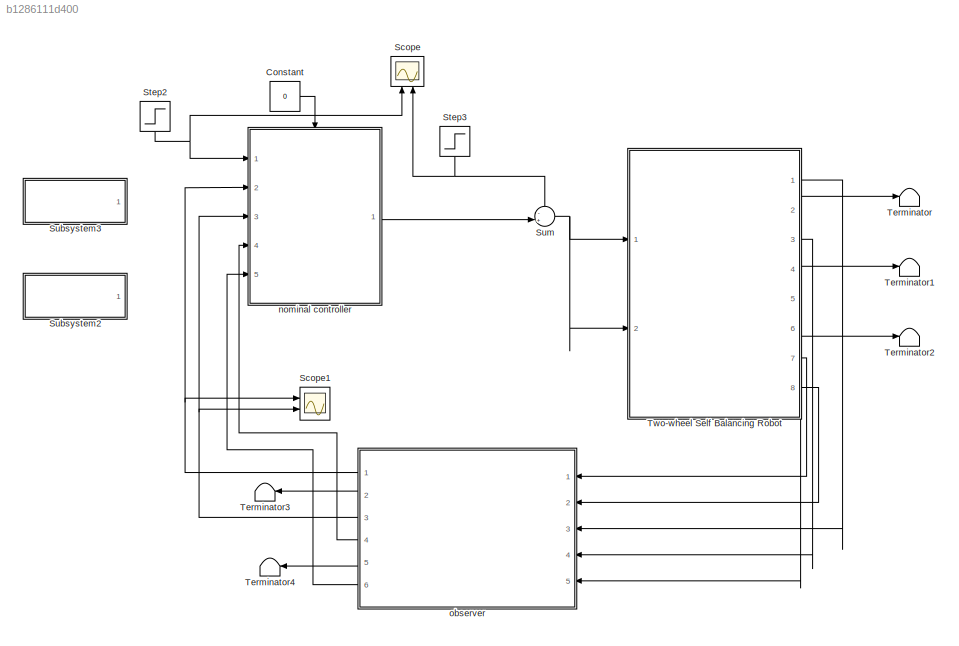
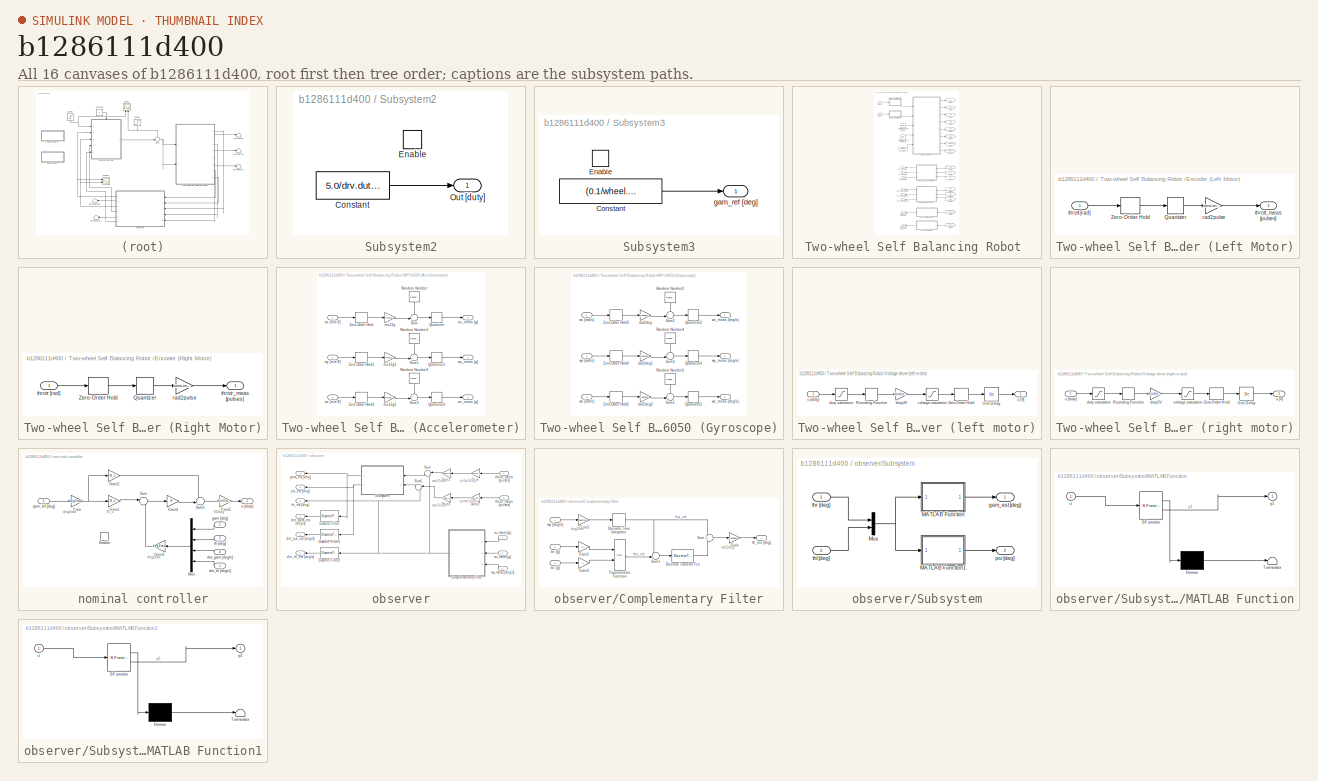
[diagram: thumbnail index - all 16 canvases of the model, root first then tree order]
MODEL slx_b1286111d400
KIND model
CONFIG AbsTol = auto
CONFIG EnableMultiTasking = off
CONFIG FixedStep = 0.01
CONFIG MaxStep = auto
CONFIG MinStep = auto
CONFIG RelTol = 1e-3
CONFIG SampleTimeConstraint = Unconstrained
CONFIG SolverName = ode15s
CONFIG StartTime = 0.0
CONFIG StopTime = 12
BLOCK [Constant] Constant
  SampleTime = Ts
  Value = 0
BLOCK [Scope] Scope
  Floating = off
  NameLocation = right
  NumInputPorts = 2
  Ports = [2]
  ScopeSpecificationString = Simulink.scopes.TimeScopeBlockCfg('CurrentConfiguration', extmgr.ConfigurationSet(extmgr.Configuration('Core','General UI',true),extmgr.Configuration('Core','Source UI',true),extmgr.Configuration('Sources','WiredSimulink',true,'DataLoggingVariableName','ScopeData1'),extmgr.Configuration('Visuals','Time Domain',true,'SerializedDisplays',{struct('MinYLimReal','-21.06462','MaxYLimReal','189.58162','Y...<+1435ch>
BLOCK [Scope] Scope1
  Floating = off
  NumInputPorts = 2
  Ports = [2]
  ScopeSpecificationString = Simulink.scopes.TimeScopeBlockCfg('CurrentConfiguration', extmgr.ConfigurationSet(extmgr.Configuration('Core','General UI',true),extmgr.Configuration('Core','Source UI',true),extmgr.Configuration('Sources','WiredSimulink',true,'DataLoggingVariableName','ScopeData1','DataLoggingSaveFormat','Array','DataLoggingLimitDataPoints',true,'DataLoggingDecimation','1'),extmgr.Configuration('Visuals','Time Do...<+1754ch>
BLOCK [Step] Step2
  After = (0.1/wheel.r)*rad2deg*1
  NameLocation = left
  SampleTime = Ts
BLOCK [Step] Step3
  After = 5.0/drv.duty2V*1
  NameLocation = left
  SampleTime = Ts
  Time = 10
BLOCK [SubSystem] Subsystem2
  Ports = [0, 1, 1]
  RequestExecContextInheritance = off
BLOCK [Constant] Subsystem2/Constant
  Value = 5.0/drv.duty2V
BLOCK [EnablePort] Subsystem2/Enable
  Ports = []
BLOCK [Outport] Subsystem2/Out [duty]
BLOCK [SubSystem] Subsystem3
  Ports = [0, 1, 1]
  RequestExecContextInheritance = off
BLOCK [Constant] Subsystem3/Constant
  Value = (0.1/wheel.r)*rad2deg
BLOCK [EnablePort] Subsystem3/Enable
  Ports = []
BLOCK [Outport] Subsystem3/gam_ref [deg]
BLOCK [Sum] Sum
  Inputs = -+|
  Ports = [2, 1]
BLOCK [Terminator] Terminator
BLOCK [Terminator] Terminator1
BLOCK [Terminator] Terminator2
BLOCK [Terminator] Terminator3
BLOCK [Terminator] Terminator4
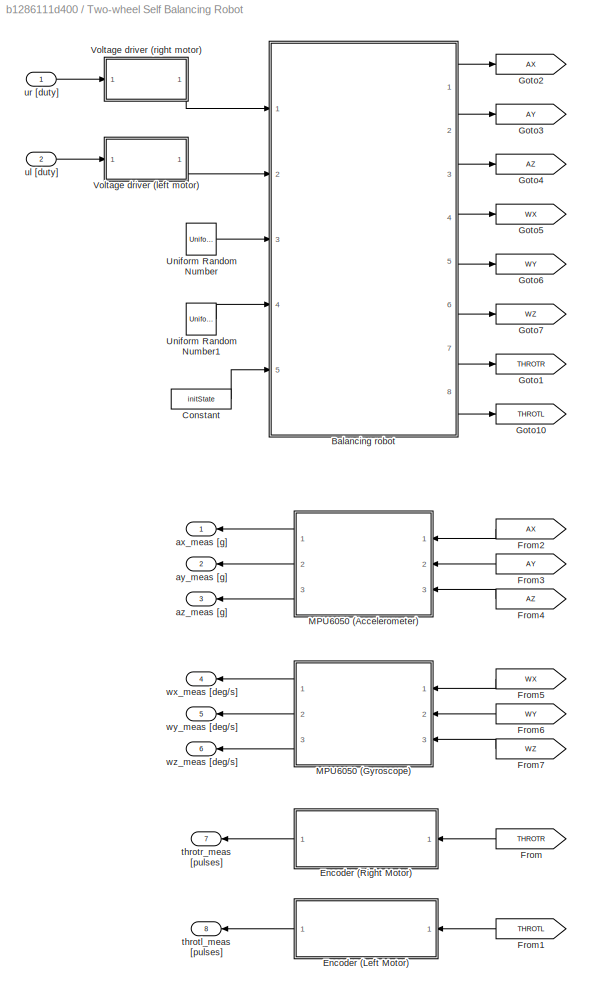
BLOCK [SubSystem] Two-wheel Self Balancing Robot 
  Ports = [2, 8]
  RequestExecContextInheritance = off
BLOCK [ModelReference] Two-wheel Self Balancing Robot /Balancing robot
  CopyOfModelProtected = on
  ModelNameDialog = balrob3d_win64.slxp
  ModelReferenceVersion = 1.741
  Ports = [5, 8]
BLOCK [Constant] Two-wheel Self Balancing Robot /Constant
  Value = initState
BLOCK [SubSystem] Two-wheel Self Balancing Robot /Encoder (Left Motor)
  Ports = [1, 1]
  RequestExecContextInheritance = off
BLOCK [Quantizer] Two-wheel Self Balancing Robot /Encoder (Left Motor)/Quantizer
  QuantizationInterval = sens.enc.pulse2rad
BLOCK [ZeroOrderHold] Two-wheel Self Balancing Robot /Encoder (Left Motor)/Zero-Order Hold
  SampleTime = Ts
BLOCK [Gain] Two-wheel Self Balancing Robot /Encoder (Left Motor)/rad2pulse
  Gain = sens.enc.rad2pulse
BLOCK [Inport] Two-wheel Self Balancing Robot /Encoder (Left Motor)/throtl [rad]
BLOCK [Outport] Two-wheel Self Balancing Robot /Encoder (Left Motor)/throtl_meas [pulses]
BLOCK [SubSystem] Two-wheel Self Balancing Robot /Encoder (Right Motor)
  Ports = [1, 1]
  RequestExecContextInheritance = off
BLOCK [Quantizer] Two-wheel Self Balancing Robot /Encoder (Right Motor)/Quantizer
  QuantizationInterval = sens.enc.pulse2rad
BLOCK [ZeroOrderHold] Two-wheel Self Balancing Robot /Encoder (Right Motor)/Zero-Order Hold
  SampleTime = Ts
BLOCK [Gain] Two-wheel Self Balancing Robot /Encoder (Right Motor)/rad2pulse
  Gain = sens.enc.rad2pulse
BLOCK [Inport] Two-wheel Self Balancing Robot /Encoder (Right Motor)/throtr [rad]
BLOCK [Outport] Two-wheel Self Balancing Robot /Encoder (Right Motor)/throtr_meas [pulses]
BLOCK [From] Two-wheel Self Balancing Robot /From
  GotoTag = THROTR
  NameLocation = top
BLOCK [From] Two-wheel Self Balancing Robot /From1
  GotoTag = THROTL
  NameLocation = top
BLOCK [From] Two-wheel Self Balancing Robot /From2
  GotoTag = AX
  NameLocation = top
BLOCK [From] Two-wheel Self Balancing Robot /From3
  GotoTag = AY
  NameLocation = top
BLOCK [From] Two-wheel Self Balancing Robot /From4
  GotoTag = AZ
  NameLocation = top
BLOCK [From] Two-wheel Self Balancing Robot /From5
  GotoTag = WX
  NameLocation = top
BLOCK [From] Two-wheel Self Balancing Robot /From6
  GotoTag = WY
  NameLocation = top
BLOCK [From] Two-wheel Self Balancing Robot /From7
  GotoTag = WZ
  NameLocation = top
BLOCK [Goto] Two-wheel Self Balancing Robot /Goto1
  GotoTag = THROTR
BLOCK [Goto] Two-wheel Self Balancing Robot /Goto10
  GotoTag = THROTL
BLOCK [Goto] Two-wheel Self Balancing Robot /Goto2
  GotoTag = AX
BLOCK [Goto] Two-wheel Self Balancing Robot /Goto3
  GotoTag = AY
BLOCK [Goto] Two-wheel Self Balancing Robot /Goto4
  GotoTag = AZ
BLOCK [Goto] Two-wheel Self Balancing Robot /Goto5
  GotoTag = WX
BLOCK [Goto] Two-wheel Self Balancing Robot /Goto6
  GotoTag = WY
BLOCK [Goto] Two-wheel Self Balancing Robot /Goto7
  GotoTag = WZ
BLOCK [SubSystem] Two-wheel Self Balancing Robot /MPU6050 (Accelerometer)
  Ports = [3, 3]
  RequestExecContextInheritance = off
BLOCK [Quantizer] Two-wheel Self Balancing Robot /MPU6050 (Accelerometer)/Quantizer
  QuantizationInterval = sens.mpu.acc.LSB2g
BLOCK [Quantizer] Two-wheel Self Balancing Robot /MPU6050 (Accelerometer)/Quantizer1
  QuantizationInterval = sens.mpu.acc.LSB2g
BLOCK [Quantizer] Two-wheel Self Balancing Robot /MPU6050 (Accelerometer)/Quantizer3
  QuantizationInterval = sens.mpu.acc.LSB2g
BLOCK [RandomNumber] Two-wheel Self Balancing Robot /MPU6050 (Accelerometer)/Random Number
  NameLocation = left
  SampleTime = Ts
  Seed = 1
  Variance = sens.mpu.acc.noisevar
BLOCK [RandomNumber] Two-wheel Self Balancing Robot /MPU6050 (Accelerometer)/Random Number1
  NameLocation = left
  SampleTime = Ts
  Seed = 10
  Variance = sens.mpu.acc.noisevar
BLOCK [RandomNumber] Two-wheel Self Balancing Robot /MPU6050 (Accelerometer)/Random Number3
  NameLocation = left
  SampleTime = Ts
  Seed = 100
  Variance = sens.mpu.acc.noisevar
BLOCK [Sum] Two-wheel Self Balancing Robot /MPU6050 (Accelerometer)/Sum
  Inputs = ++|
  Ports = [2, 1]
BLOCK [Sum] Two-wheel Self Balancing Robot /MPU6050 (Accelerometer)/Sum1
  Inputs = ++|
  Ports = [2, 1]
BLOCK [Sum] Two-wheel Self Balancing Robot /MPU6050 (Accelerometer)/Sum3
  Inputs = ++|
  Ports = [2, 1]
BLOCK [ZeroOrderHold] Two-wheel Self Balancing Robot /MPU6050 (Accelerometer)/Zero-Order Hold
  SampleTime = Ts
BLOCK [ZeroOrderHold] Two-wheel Self Balancing Robot /MPU6050 (Accelerometer)/Zero-Order Hold1
  SampleTime = Ts
BLOCK [ZeroOrderHold] Two-wheel Self Balancing Robot /MPU6050 (Accelerometer)/Zero-Order Hold3
  SampleTime = Ts
BLOCK [Inport] Two-wheel Self Balancing Robot /MPU6050 (Accelerometer)/ax [m//s^2]
BLOCK [Outport] Two-wheel Self Balancing Robot /MPU6050 (Accelerometer)/ax_meas [g]
BLOCK [Inport] Two-wheel Self Balancing Robot /MPU6050 (Accelerometer)/ay [m//s^2]
  Port = 2
BLOCK [Outport] Two-wheel Self Balancing Robot /MPU6050 (Accelerometer)/ay_meas [g]
  Port = 2
BLOCK [Inport] Two-wheel Self Balancing Robot /MPU6050 (Accelerometer)/az [m//s^2]
  Port = 3
BLOCK [Outport] Two-wheel Self Balancing Robot /MPU6050 (Accelerometer)/az_meas [g]
  Port = 3
BLOCK [Gain] Two-wheel Self Balancing Robot /MPU6050 (Accelerometer)/ms22g
  Gain = ms22g
BLOCK [Gain] Two-wheel Self Balancing Robot /MPU6050 (Accelerometer)/ms22g1
  Gain = ms22g
BLOCK [Gain] Two-wheel Self Balancing Robot /MPU6050 (Accelerometer)/ms22g2
  Gain = ms22g
BLOCK [SubSystem] Two-wheel Self Balancing Robot /MPU6050 (Gyroscope)
  Ports = [3, 3]
  RequestExecContextInheritance = off
BLOCK [Quantizer] Two-wheel Self Balancing Robot /MPU6050 (Gyroscope)/Quantizer2
  QuantizationInterval = sens.mpu.gyro.LSB2degs
BLOCK [Quantizer] Two-wheel Self Balancing Robot /MPU6050 (Gyroscope)/Quantizer4
  QuantizationInterval = sens.mpu.gyro.LSB2degs
BLOCK [Quantizer] Two-wheel Self Balancing Robot /MPU6050 (Gyroscope)/Quantizer5
  QuantizationInterval = sens.mpu.gyro.LSB2degs
BLOCK [RandomNumber] Two-wheel Self Balancing Robot /MPU6050 (Gyroscope)/Random Number2
  NameLocation = left
  SampleTime = Ts
  Seed = 2
  Variance = sens.mpu.gyro.noisevar
BLOCK [RandomNumber] Two-wheel Self Balancing Robot /MPU6050 (Gyroscope)/Random Number4
  NameLocation = left
  SampleTime = Ts
  Seed = 20
  Variance = sens.mpu.gyro.noisevar
BLOCK [RandomNumber] Two-wheel Self Balancing Robot /MPU6050 (Gyroscope)/Random Number5
  NameLocation = left
  SampleTime = Ts
  Seed = 200
  Variance = sens.mpu.gyro.noisevar
BLOCK [Sum] Two-wheel Self Balancing Robot /MPU6050 (Gyroscope)/Sum2
  Inputs = ++|
  Ports = [2, 1]
BLOCK [Sum] Two-wheel Self Balancing Robot /MPU6050 (Gyroscope)/Sum4
  Inputs = ++|
  Ports = [2, 1]
BLOCK [Sum] Two-wheel Self Balancing Robot /MPU6050 (Gyroscope)/Sum5
  Inputs = ++|
  Ports = [2, 1]
BLOCK [ZeroOrderHold] Two-wheel Self Balancing Robot /MPU6050 (Gyroscope)/Zero-Order Hold2
  SampleTime = Ts
BLOCK [ZeroOrderHold] Two-wheel Self Balancing Robot /MPU6050 (Gyroscope)/Zero-Order Hold4
  SampleTime = Ts
BLOCK [ZeroOrderHold] Two-wheel Self Balancing Robot /MPU6050 (Gyroscope)/Zero-Order Hold5
  SampleTime = Ts
BLOCK [Gain] Two-wheel Self Balancing Robot /MPU6050 (Gyroscope)/rad2deg
  Gain = rad2deg
BLOCK [Gain] Two-wheel Self Balancing Robot /MPU6050 (Gyroscope)/rad2deg1
  Gain = rad2deg
BLOCK [Gain] Two-wheel Self Balancing Robot /MPU6050 (Gyroscope)/rad2deg2
  Gain = rad2deg
BLOCK [Inport] Two-wheel Self Balancing Robot /MPU6050 (Gyroscope)/wx [rad//s]
BLOCK [Outport] Two-wheel Self Balancing Robot /MPU6050 (Gyroscope)/wx_meas [deg//s]
BLOCK [Inport] Two-wheel Self Balancing Robot /MPU6050 (Gyroscope)/wy [rad//s]
  Port = 2
BLOCK [Outport] Two-wheel Self Balancing Robot /MPU6050 (Gyroscope)/wy_meas [deg//s]
  Port = 2
BLOCK [Inport] Two-wheel Self Balancing Robot /MPU6050 (Gyroscope)/wz [rad//s]
  Port = 3
BLOCK [Outport] Two-wheel Self Balancing Robot /MPU6050 (Gyroscope)/wz_meas [deg//s]
  Port = 3
BLOCK [UniformRandomNumber] Two-wheel Self Balancing Robot /Uniform Random Number
  Maximum = 1.3
  Minimum = 0.7
  SampleTime = 1
BLOCK [UniformRandomNumber] Two-wheel Self Balancing Robot /Uniform Random Number1
  Maximum = 1.3
  Minimum = 0.7
  SampleTime = 1
  Seed = 10
BLOCK [SubSystem] Two-wheel Self Balancing Robot /Voltage driver (left motor)
  Ports = [1, 1]
  RequestExecContextInheritance = off
BLOCK [Rounding] Two-wheel Self Balancing Robot /Voltage driver (left motor)/Rounding Function
  Operator = fix
BLOCK [UnitDelay] Two-wheel Self Balancing Robot /Voltage driver (left motor)/Unit Delay
  HasFrameUpgradeWarning = on
  SampleTime = 1/drv.pwm.Fs
BLOCK [ZeroOrderHold] Two-wheel Self Balancing Robot /Voltage driver (left motor)/Zero-Order Hold
  SampleTime = Ts
BLOCK [Saturate] Two-wheel Self Balancing Robot /Voltage driver (left motor)/duty saturation
  LowerLimit = -255
  UpperLimit = 255
BLOCK [Gain] Two-wheel Self Balancing Robot /Voltage driver (left motor)/duty2V
  Gain = drv.duty2V
BLOCK [Outport] Two-wheel Self Balancing Robot /Voltage driver (left motor)/u [V]
BLOCK [Inport] Two-wheel Self Balancing Robot /Voltage driver (left motor)/u [duty]
BLOCK [Saturate] Two-wheel Self Balancing Robot /Voltage driver (left motor)/voltage saturation
  LowerLimit = -drv.Vbus
  UpperLimit = drv.Vbus
BLOCK [SubSystem] Two-wheel Self Balancing Robot /Voltage driver (right motor)
  Ports = [1, 1]
  RequestExecContextInheritance = off
BLOCK [Rounding] Two-wheel Self Balancing Robot /Voltage driver (right motor)/Rounding Function
  Operator = fix
BLOCK [UnitDelay] Two-wheel Self Balancing Robot /Voltage driver (right motor)/Unit Delay
  HasFrameUpgradeWarning = on
  SampleTime = 1/drv.pwm.Fs
BLOCK [ZeroOrderHold] Two-wheel Self Balancing Robot /Voltage driver (right motor)/Zero-Order Hold
  SampleTime = Ts
BLOCK [Saturate] Two-wheel Self Balancing Robot /Voltage driver (right motor)/duty saturation
  LowerLimit = -255
  UpperLimit = 255
BLOCK [Gain] Two-wheel Self Balancing Robot /Voltage driver (right motor)/duty2V
  Gain = drv.duty2V
BLOCK [Outport] Two-wheel Self Balancing Robot /Voltage driver (right motor)/u [V]
BLOCK [Inport] Two-wheel Self Balancing Robot /Voltage driver (right motor)/u [duty]
BLOCK [Saturate] Two-wheel Self Balancing Robot /Voltage driver (right motor)/voltage saturation
  LowerLimit = -drv.Vbus
  UpperLimit = drv.Vbus
BLOCK [Outport] Two-wheel Self Balancing Robot /ax_meas [g]
BLOCK [Outport] Two-wheel Self Balancing Robot /ay_meas [g]
  Port = 2
BLOCK [Outport] Two-wheel Self Balancing Robot /az_meas [g]
  Port = 3
BLOCK [Outport] Two-wheel Self Balancing Robot /throtl_meas [pulses]
  Port = 8
BLOCK [Outport] Two-wheel Self Balancing Robot /throtr_meas [pulses]
  Port = 7
BLOCK [Inport] Two-wheel Self Balancing Robot /ul [duty]
  Port = 2
BLOCK [Inport] Two-wheel Self Balancing Robot /ur [duty]
BLOCK [Outport] Two-wheel Self Balancing Robot /wx_meas [deg//s]
  Port = 4
BLOCK [Outport] Two-wheel Self Balancing Robot /wy_meas [deg//s]
  Port = 5
BLOCK [Outport] Two-wheel Self Balancing Robot /wz_meas [deg//s]
  Port = 6
BLOCK [SubSystem] nominal controller
  Ports = [5, 1, 1]
  RequestExecContextInheritance = off
BLOCK [EnablePort] nominal controller/Enable
  Ports = []
BLOCK [Gain] nominal controller/Gain
  Gain = deg2rad
BLOCK [Gain] nominal controller/Gain1
  Gain = N_x
BLOCK [Gain] nominal controller/Gain2
  Gain = N_u
BLOCK [Gain] nominal controller/Gain3
  Gain = deg2rad
  NameLocation = top
BLOCK [Gain] nominal controller/Gain4
  Gain = K
  Multiplication = Matrix(K*u)
BLOCK [Gain] nominal controller/Gain5
  Gain = drv.V2duty
BLOCK [Mux] nominal controller/Mux
  DisplayOption = bar
  Ports = [4, 1]
BLOCK [Sum] nominal controller/Sum
  Inputs = |+-
  Ports = [2, 1]
BLOCK [Sum] nominal controller/Sum1
  Inputs = ++|
  Ports = [2, 1]
BLOCK [Inport] nominal controller/dot_gam [deg//s]
  Port = 4
BLOCK [Inport] nominal controller/dot_th [deg//s]
  Port = 5
BLOCK [Inport] nominal controller/gam [deg]
  Port = 2
BLOCK [Inport] nominal controller/gam_ref [deg]
BLOCK [Inport] nominal controller/th [deg]
  Port = 3
BLOCK [Outport] nominal controller/u [duty]
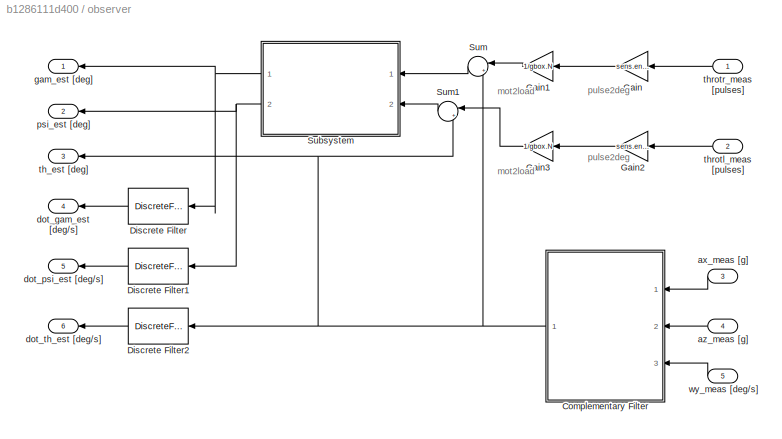
BLOCK [SubSystem] observer
  Ports = [5, 6]
  RequestExecContextInheritance = off
BLOCK [SubSystem] observer/Complementary Filter
  Ports = [3, 1]
  RequestExecContextInheritance = off
BLOCK [DiscreteTransferFcn] observer/Complementary Filter/Discrete Transfer Fcn
  Denominator = [0.4547 -0.4447]
  InputPortMap = u0
  Numerator = [0.01]
  Ports = [1, 1]
  SampleTime = Ts
BLOCK [DiscreteIntegrator] observer/Complementary Filter/Discrete-Time Integrator
  ICPrevOutput = DiscIntNeverNeededParam
  ICPrevScaledInput = DiscIntNeverNeededParam
  InitialConditionSetting = Auto
  Ports = [1, 1]
  SampleTime = Ts
BLOCK [Gain] observer/Complementary Filter/Gain
  Gain = rad2deg
BLOCK [Gain] observer/Complementary Filter/Gain1
BLOCK [Gain] observer/Complementary Filter/Gain2
  Gain = -1
BLOCK [Gain] observer/Complementary Filter/Gain3
  Gain = deg2rad
BLOCK [Sum] observer/Complementary Filter/Sum
  Inputs = +|+
  Ports = [2, 1]
BLOCK [Sum] observer/Complementary Filter/Sum1
  Inputs = -+|
  Ports = [2, 1]
BLOCK [Trigonometry] observer/Complementary Filter/Trigonometric Function
  Operator = atan2
  Ports = [2, 1]
BLOCK [Inport] observer/Complementary Filter/ax [g]
  Port = 2
BLOCK [Inport] observer/Complementary Filter/az [g]
  Port = 3
BLOCK [Outport] observer/Complementary Filter/th_est [deg]
BLOCK [Inport] observer/Complementary Filter/wy [deg//s]
BLOCK [DiscreteFilter] observer/Discrete Filter
  Denominator = [3*Ts]
  InputPortMap = u0
  Numerator = [1 0 0 -1]
  Ports = [1, 1]
  SampleTime = Ts
BLOCK [DiscreteFilter] observer/Discrete Filter1
  Denominator = [3*Ts]
  InputPortMap = u0
  Numerator = [1 0 0 -1]
  Ports = [1, 1]
  SampleTime = Ts
BLOCK [DiscreteFilter] observer/Discrete Filter2
  Denominator = [3*Ts]
  InputPortMap = u0
  Numerator = [1 0 0 -1]
  Ports = [1, 1]
  SampleTime = Ts
BLOCK [Gain] observer/Gain
  Gain = sens.enc.pulse2deg
BLOCK [Gain] observer/Gain1
  Gain = 1/gbox.N
BLOCK [Gain] observer/Gain2
  Gain = sens.enc.pulse2deg
BLOCK [Gain] observer/Gain3
  Gain = 1/gbox.N
BLOCK [SubSystem] observer/Subsystem
  Ports = [2, 2]
  RequestExecContextInheritance = off
BLOCK [SubSystem] observer/Subsystem/MATLAB Function
  ErrorFcn = Stateflow.Translate.translate
  PermitHierarchicalResolution = ExplicitOnly
  Ports = [1, 1]
  RequestExecContextInheritance = off
  SFBlockType = MATLAB Function
  TreatAsAtomicUnit = on
BLOCK [Demux] observer/Subsystem/MATLAB Function/ Demux 
  Outputs = 1
  Ports = [1, 1]
BLOCK [S-Function] observer/Subsystem/MATLAB Function/ SFunction 
  EnableBusSupport = on
  FunctionName = sf_sfun
  PortCounts = [1 2]
  Ports = [1, 2]
  SFcnIsStateOwnerBlock = off
  SFunctionDeploymentMode = off
  Tag = Stateflow S-Function 2
BLOCK [Terminator] observer/Subsystem/MATLAB Function/ Terminator 
BLOCK [Inport] observer/Subsystem/MATLAB Function/u
BLOCK [Outport] observer/Subsystem/MATLAB Function/y1
BLOCK [SubSystem] observer/Subsystem/MATLAB Function1
  ErrorFcn = Stateflow.Translate.translate
  PermitHierarchicalResolution = ExplicitOnly
  Ports = [1, 1]
  RequestExecContextInheritance = off
  SFBlockType = MATLAB Function
  TreatAsAtomicUnit = on
BLOCK [Demux] observer/Subsystem/MATLAB Function1/ Demux 
  Outputs = 1
  Ports = [1, 1]
BLOCK [S-Function] observer/Subsystem/MATLAB Function1/ SFunction 
  EnableBusSupport = on
  FunctionName = sf_sfun
  PortCounts = [1 2]
  Ports = [1, 2]
  SFcnIsStateOwnerBlock = off
  SFunctionDeploymentMode = off
  Tag = Stateflow S-Function 1
BLOCK [Terminator] observer/Subsystem/MATLAB Function1/ Terminator 
BLOCK [Inport] observer/Subsystem/MATLAB Function1/u
BLOCK [Outport] observer/Subsystem/MATLAB Function1/y2
BLOCK [Mux] observer/Subsystem/Mux
  DisplayOption = bar
  Inputs = 2
  Ports = [2, 1]
BLOCK [Outport] observer/Subsystem/gam_est [deg]
BLOCK [Outport] observer/Subsystem/psi [deg]
  Port = 2
BLOCK [Inport] observer/Subsystem/thl [deg]
  Port = 2
BLOCK [Inport] observer/Subsystem/thr [deg]
BLOCK [Sum] observer/Sum
  Inputs = |++
  Ports = [2, 1]
BLOCK [Sum] observer/Sum1
  Inputs = |++
  Ports = [2, 1]
BLOCK [Inport] observer/ax_meas [g]
  Port = 3
BLOCK [Inport] observer/az_meas [g]
  Port = 4
BLOCK [Outport] observer/dot_gam_est [deg//s]
  Port = 4
BLOCK [Outport] observer/dot_psi_est [deg//s]
  Port = 5
BLOCK [Outport] observer/dot_th_est [deg//s]
  Port = 6
BLOCK [Outport] observer/gam_est [deg]
BLOCK [Outport] observer/psi_est [deg]
  Port = 2
BLOCK [Outport] observer/th_est [deg]
  Port = 3
BLOCK [Inport] observer/throtl_meas [pulses]
  Port = 2
BLOCK [Inport] observer/throtr_meas [pulses]
BLOCK [Inport] observer/wy_meas [deg//s]
  Port = 5
ANNOTATION nominal controller: N_x
ANNOTATION nominal controller: V2duty
ANNOTATION nominal controller: deg2rad
ANNOTATION observer: mot2load
ANNOTATION observer: pulse2deg
ANNOTATION observer/Complementary Filter: deg2rad
ANNOTATION observer/Complementary Filter: rad2deg
LINE Constant:1 -> nominal controller:enable
NET Step2:1 -> Scope:1, nominal controller:1
NET Step3:1 -> Scope:2, Sum:1
LINE Subsystem2/Constant:1 -> Subsystem2/Out [duty]:1
LINE Subsystem3/Constant:1 -> Subsystem3/gam_ref [deg]:1
NET Sum:1 -> Two-wheel Self Balancing Robot :1, Two-wheel Self Balancing Robot :2
LINE Two-wheel Self Balancing Robot /Balancing robot:1 -> Two-wheel Self Balancing Robot /Goto2:1
LINE Two-wheel Self Balancing Robot /Balancing robot:2 -> Two-wheel Self Balancing Robot /Goto3:1
LINE Two-wheel Self Balancing Robot /Balancing robot:3 -> Two-wheel Self Balancing Robot /Goto4:1
LINE Two-wheel Self Balancing Robot /Balancing robot:4 -> Two-wheel Self Balancing Robot /Goto5:1
LINE Two-wheel Self Balancing Robot /Balancing robot:5 -> Two-wheel Self Balancing Robot /Goto6:1
LINE Two-wheel Self Balancing Robot /Balancing robot:6 -> Two-wheel Self Balancing Robot /Goto7:1
LINE Two-wheel Self Balancing Robot /Balancing robot:7 -> Two-wheel Self Balancing Robot /Goto1:1
LINE Two-wheel Self Balancing Robot /Balancing robot:8 -> Two-wheel Self Balancing Robot /Goto10:1
LINE Two-wheel Self Balancing Robot /Constant:1 -> Two-wheel Self Balancing Robot /Balancing robot:5
LINE Two-wheel Self Balancing Robot /Encoder (Left Motor)/Quantizer:1 -> Two-wheel Self Balancing Robot /Encoder (Left Motor)/rad2pulse:1
LINE Two-wheel Self Balancing Robot /Encoder (Left Motor)/Zero-Order Hold:1 -> Two-wheel Self Balancing Robot /Encoder (Left Motor)/Quantizer:1
LINE Two-wheel Self Balancing Robot /Encoder (Left Motor)/rad2pulse:1 -> Two-wheel Self Balancing Robot /Encoder (Left Motor)/throtl_meas [pulses]:1
LINE Two-wheel Self Balancing Robot /Encoder (Left Motor)/throtl [rad]:1 -> Two-wheel Self Balancing Robot /Encoder (Left Motor)/Zero-Order Hold:1
LINE Two-wheel Self Balancing Robot /Encoder (Left Motor):1 -> Two-wheel Self Balancing Robot /throtl_meas [pulses]:1
LINE Two-wheel Self Balancing Robot /Encoder (Right Motor)/Quantizer:1 -> Two-wheel Self Balancing Robot /Encoder (Right Motor)/rad2pulse:1
LINE Two-wheel Self Balancing Robot /Encoder (Right Motor)/Zero-Order Hold:1 -> Two-wheel Self Balancing Robot /Encoder (Right Motor)/Quantizer:1
LINE Two-wheel Self Balancing Robot /Encoder (Right Motor)/rad2pulse:1 -> Two-wheel Self Balancing Robot /Encoder (Right Motor)/throtr_meas [pulses]:1
LINE Two-wheel Self Balancing Robot /Encoder (Right Motor)/throtr [rad]:1 -> Two-wheel Self Balancing Robot /Encoder (Right Motor)/Zero-Order Hold:1
LINE Two-wheel Self Balancing Robot /Encoder (Right Motor):1 -> Two-wheel Self Balancing Robot /throtr_meas [pulses]:1
LINE Two-wheel Self Balancing Robot /From1:1 -> Two-wheel Self Balancing Robot /Encoder (Left Motor):1
LINE Two-wheel Self Balancing Robot /From2:1 -> Two-wheel Self Balancing Robot /MPU6050 (Accelerometer):1
LINE Two-wheel Self Balancing Robot /From3:1 -> Two-wheel Self Balancing Robot /MPU6050 (Accelerometer):2
LINE Two-wheel Self Balancing Robot /From4:1 -> Two-wheel Self Balancing Robot /MPU6050 (Accelerometer):3
LINE Two-wheel Self Balancing Robot /From5:1 -> Two-wheel Self Balancing Robot /MPU6050 (Gyroscope):1
LINE Two-wheel Self Balancing Robot /From6:1 -> Two-wheel Self Balancing Robot /MPU6050 (Gyroscope):2
LINE Two-wheel Self Balancing Robot /From7:1 -> Two-wheel Self Balancing Robot /MPU6050 (Gyroscope):3
LINE Two-wheel Self Balancing Robot /From:1 -> Two-wheel Self Balancing Robot /Encoder (Right Motor):1
LINE Two-wheel Self Balancing Robot /MPU6050 (Accelerometer)/Quantizer1:1 -> Two-wheel Self Balancing Robot /MPU6050 (Accelerometer)/ay_meas [g]:1
LINE Two-wheel Self Balancing Robot /MPU6050 (Accelerometer)/Quantizer3:1 -> Two-wheel Self Balancing Robot /MPU6050 (Accelerometer)/az_meas [g]:1
LINE Two-wheel Self Balancing Robot /MPU6050 (Accelerometer)/Quantizer:1 -> Two-wheel Self Balancing Robot /MPU6050 (Accelerometer)/ax_meas [g]:1
LINE Two-wheel Self Balancing Robot /MPU6050 (Accelerometer)/Random Number1:1 -> Two-wheel Self Balancing Robot /MPU6050 (Accelerometer)/Sum1:1
LINE Two-wheel Self Balancing Robot /MPU6050 (Accelerometer)/Random Number3:1 -> Two-wheel Self Balancing Robot /MPU6050 (Accelerometer)/Sum3:1
LINE Two-wheel Self Balancing Robot /MPU6050 (Accelerometer)/Random Number:1 -> Two-wheel Self Balancing Robot /MPU6050 (Accelerometer)/Sum:1
LINE Two-wheel Self Balancing Robot /MPU6050 (Accelerometer)/Sum1:1 -> Two-wheel Self Balancing Robot /MPU6050 (Accelerometer)/Quantizer1:1
LINE Two-wheel Self Balancing Robot /MPU6050 (Accelerometer)/Sum3:1 -> Two-wheel Self Balancing Robot /MPU6050 (Accelerometer)/Quantizer3:1
LINE Two-wheel Self Balancing Robot /MPU6050 (Accelerometer)/Sum:1 -> Two-wheel Self Balancing Robot /MPU6050 (Accelerometer)/Quantizer:1
LINE Two-wheel Self Balancing Robot /MPU6050 (Accelerometer)/Zero-Order Hold1:1 -> Two-wheel Self Balancing Robot /MPU6050 (Accelerometer)/ms22g1:1
LINE Two-wheel Self Balancing Robot /MPU6050 (Accelerometer)/Zero-Order Hold3:1 -> Two-wheel Self Balancing Robot /MPU6050 (Accelerometer)/ms22g2:1
LINE Two-wheel Self Balancing Robot /MPU6050 (Accelerometer)/Zero-Order Hold:1 -> Two-wheel Self Balancing Robot /MPU6050 (Accelerometer)/ms22g:1
LINE Two-wheel Self Balancing Robot /MPU6050 (Accelerometer)/ax [m//s^2]:1 -> Two-wheel Self Balancing Robot /MPU6050 (Accelerometer)/Zero-Order Hold:1
LINE Two-wheel Self Balancing Robot /MPU6050 (Accelerometer)/ay [m//s^2]:1 -> Two-wheel Self Balancing Robot /MPU6050 (Accelerometer)/Zero-Order Hold1:1
LINE Two-wheel Self Balancing Robot /MPU6050 (Accelerometer)/az [m//s^2]:1 -> Two-wheel Self Balancing Robot /MPU6050 (Accelerometer)/Zero-Order Hold3:1
LINE Two-wheel Self Balancing Robot /MPU6050 (Accelerometer)/ms22g1:1 -> Two-wheel Self Balancing Robot /MPU6050 (Accelerometer)/Sum1:2
LINE Two-wheel Self Balancing Robot /MPU6050 (Accelerometer)/ms22g2:1 -> Two-wheel Self Balancing Robot /MPU6050 (Accelerometer)/Sum3:2
LINE Two-wheel Self Balancing Robot /MPU6050 (Accelerometer)/ms22g:1 -> Two-wheel Self Balancing Robot /MPU6050 (Accelerometer)/Sum:2
LINE Two-wheel Self Balancing Robot /MPU6050 (Accelerometer):1 -> Two-wheel Self Balancing Robot /ax_meas [g]:1
LINE Two-wheel Self Balancing Robot /MPU6050 (Accelerometer):2 -> Two-wheel Self Balancing Robot /ay_meas [g]:1
LINE Two-wheel Self Balancing Robot /MPU6050 (Accelerometer):3 -> Two-wheel Self Balancing Robot /az_meas [g]:1
LINE Two-wheel Self Balancing Robot /MPU6050 (Gyroscope)/Quantizer2:1 -> Two-wheel Self Balancing Robot /MPU6050 (Gyroscope)/wx_meas [deg//s]:1
LINE Two-wheel Self Balancing Robot /MPU6050 (Gyroscope)/Quantizer4:1 -> Two-wheel Self Balancing Robot /MPU6050 (Gyroscope)/wy_meas [deg//s]:1
LINE Two-wheel Self Balancing Robot /MPU6050 (Gyroscope)/Quantizer5:1 -> Two-wheel Self Balancing Robot /MPU6050 (Gyroscope)/wz_meas [deg//s]:1
LINE Two-wheel Self Balancing Robot /MPU6050 (Gyroscope)/Random Number2:1 -> Two-wheel Self Balancing Robot /MPU6050 (Gyroscope)/Sum2:1
LINE Two-wheel Self Balancing Robot /MPU6050 (Gyroscope)/Random Number4:1 -> Two-wheel Self Balancing Robot /MPU6050 (Gyroscope)/Sum4:1
LINE Two-wheel Self Balancing Robot /MPU6050 (Gyroscope)/Random Number5:1 -> Two-wheel Self Balancing Robot /MPU6050 (Gyroscope)/Sum5:1
LINE Two-wheel Self Balancing Robot /MPU6050 (Gyroscope)/Sum2:1 -> Two-wheel Self Balancing Robot /MPU6050 (Gyroscope)/Quantizer2:1
LINE Two-wheel Self Balancing Robot /MPU6050 (Gyroscope)/Sum4:1 -> Two-wheel Self Balancing Robot /MPU6050 (Gyroscope)/Quantizer4:1
LINE Two-wheel Self Balancing Robot /MPU6050 (Gyroscope)/Sum5:1 -> Two-wheel Self Balancing Robot /MPU6050 (Gyroscope)/Quantizer5:1
LINE Two-wheel Self Balancing Robot /MPU6050 (Gyroscope)/Zero-Order Hold2:1 -> Two-wheel Self Balancing Robot /MPU6050 (Gyroscope)/rad2deg:1
LINE Two-wheel Self Balancing Robot /MPU6050 (Gyroscope)/Zero-Order Hold4:1 -> Two-wheel Self Balancing Robot /MPU6050 (Gyroscope)/rad2deg1:1
LINE Two-wheel Self Balancing Robot /MPU6050 (Gyroscope)/Zero-Order Hold5:1 -> Two-wheel Self Balancing Robot /MPU6050 (Gyroscope)/rad2deg2:1
LINE Two-wheel Self Balancing Robot /MPU6050 (Gyroscope)/rad2deg1:1 -> Two-wheel Self Balancing Robot /MPU6050 (Gyroscope)/Sum4:2
LINE Two-wheel Self Balancing Robot /MPU6050 (Gyroscope)/rad2deg2:1 -> Two-wheel Self Balancing Robot /MPU6050 (Gyroscope)/Sum5:2
LINE Two-wheel Self Balancing Robot /MPU6050 (Gyroscope)/rad2deg:1 -> Two-wheel Self Balancing Robot /MPU6050 (Gyroscope)/Sum2:2
LINE Two-wheel Self Balancing Robot /MPU6050 (Gyroscope)/wx [rad//s]:1 -> Two-wheel Self Balancing Robot /MPU6050 (Gyroscope)/Zero-Order Hold2:1
LINE Two-wheel Self Balancing Robot /MPU6050 (Gyroscope)/wy [rad//s]:1 -> Two-wheel Self Balancing Robot /MPU6050 (Gyroscope)/Zero-Order Hold4:1
LINE Two-wheel Self Balancing Robot /MPU6050 (Gyroscope)/wz [rad//s]:1 -> Two-wheel Self Balancing Robot /MPU6050 (Gyroscope)/Zero-Order Hold5:1
LINE Two-wheel Self Balancing Robot /MPU6050 (Gyroscope):1 -> Two-wheel Self Balancing Robot /wx_meas [deg//s]:1
LINE Two-wheel Self Balancing Robot /MPU6050 (Gyroscope):2 -> Two-wheel Self Balancing Robot /wy_meas [deg//s]:1
LINE Two-wheel Self Balancing Robot /MPU6050 (Gyroscope):3 -> Two-wheel Self Balancing Robot /wz_meas [deg//s]:1
LINE Two-wheel Self Balancing Robot /Uniform Random Number1:1 -> Two-wheel Self Balancing Robot /Balancing robot:4
LINE Two-wheel Self Balancing Robot /Uniform Random Number:1 -> Two-wheel Self Balancing Robot /Balancing robot:3
LINE Two-wheel Self Balancing Robot /Voltage driver (left motor)/Rounding Function:1 -> Two-wheel Self Balancing Robot /Voltage driver (left motor)/duty2V:1
LINE Two-wheel Self Balancing Robot /Voltage driver (left motor)/Unit Delay:1 -> Two-wheel Self Balancing Robot /Voltage driver (left motor)/u [V]:1
LINE Two-wheel Self Balancing Robot /Voltage driver (left motor)/Zero-Order Hold:1 -> Two-wheel Self Balancing Robot /Voltage driver (left motor)/Unit Delay:1
LINE Two-wheel Self Balancing Robot /Voltage driver (left motor)/duty saturation:1 -> Two-wheel Self Balancing Robot /Voltage driver (left motor)/Rounding Function:1
LINE Two-wheel Self Balancing Robot /Voltage driver (left motor)/duty2V:1 -> Two-wheel Self Balancing Robot /Voltage driver (left motor)/voltage saturation:1
LINE Two-wheel Self Balancing Robot /Voltage driver (left motor)/u [duty]:1 -> Two-wheel Self Balancing Robot /Voltage driver (left motor)/duty saturation:1
LINE Two-wheel Self Balancing Robot /Voltage driver (left motor)/voltage saturation:1 -> Two-wheel Self Balancing Robot /Voltage driver (left motor)/Zero-Order Hold:1
LINE Two-wheel Self Balancing Robot /Voltage driver (left motor):1 -> Two-wheel Self Balancing Robot /Balancing robot:2
LINE Two-wheel Self Balancing Robot /Voltage driver (right motor)/Rounding Function:1 -> Two-wheel Self Balancing Robot /Voltage driver (right motor)/duty2V:1
LINE Two-wheel Self Balancing Robot /Voltage driver (right motor)/Unit Delay:1 -> Two-wheel Self Balancing Robot /Voltage driver (right motor)/u [V]:1
LINE Two-wheel Self Balancing Robot /Voltage driver (right motor)/Zero-Order Hold:1 -> Two-wheel Self Balancing Robot /Voltage driver (right motor)/Unit Delay:1
LINE Two-wheel Self Balancing Robot /Voltage driver (right motor)/duty saturation:1 -> Two-wheel Self Balancing Robot /Voltage driver (right motor)/Rounding Function:1
LINE Two-wheel Self Balancing Robot /Voltage driver (right motor)/duty2V:1 -> Two-wheel Self Balancing Robot /Voltage driver (right motor)/voltage saturation:1
LINE Two-wheel Self Balancing Robot /Voltage driver (right motor)/u [duty]:1 -> Two-wheel Self Balancing Robot /Voltage driver (right motor)/duty saturation:1
LINE Two-wheel Self Balancing Robot /Voltage driver (right motor)/voltage saturation:1 -> Two-wheel Self Balancing Robot /Voltage driver (right motor)/Zero-Order Hold:1
LINE Two-wheel Self Balancing Robot /Voltage driver (right motor):1 -> Two-wheel Self Balancing Robot /Balancing robot:1
LINE Two-wheel Self Balancing Robot /ul [duty]:1 -> Two-wheel Self Balancing Robot /Voltage driver (left motor):1
LINE Two-wheel Self Balancing Robot /ur [duty]:1 -> Two-wheel Self Balancing Robot /Voltage driver (right motor):1
LINE Two-wheel Self Balancing Robot :1 -> observer:3
LINE Two-wheel Self Balancing Robot :2 -> Terminator:1
LINE Two-wheel Self Balancing Robot :3 -> observer:4
LINE Two-wheel Self Balancing Robot :4 -> Terminator1:1
LINE Two-wheel Self Balancing Robot :5 -> observer:5
LINE Two-wheel Self Balancing Robot :6 -> Terminator2:1
LINE Two-wheel Self Balancing Robot :7 -> observer:1
LINE Two-wheel Self Balancing Robot :8 -> observer:2
LINE nominal controller/Gain1:1 -> nominal controller/Sum:1
LINE nominal controller/Gain2:1 -> nominal controller/Sum1:1
LINE nominal controller/Gain3:1 -> nominal controller/Sum:2
LINE nominal controller/Gain4:1 -> nominal controller/Sum1:2
LINE nominal controller/Gain5:1 -> nominal controller/u [duty]:1
NET nominal controller/Gain:1 -> nominal controller/Gain1:1, nominal controller/Gain2:1
LINE nominal controller/Mux:1 -> nominal controller/Gain3:1
LINE nominal controller/Sum1:1 -> nominal controller/Gain5:1
LINE nominal controller/Sum:1 -> nominal controller/Gain4:1
LINE nominal controller/dot_gam [deg//s]:1 -> nominal controller/Mux:3
LINE nominal controller/dot_th [deg//s]:1 -> nominal controller/Mux:4
LINE nominal controller/gam [deg]:1 -> nominal controller/Mux:1
LINE nominal controller/gam_ref [deg]:1 -> nominal controller/Gain:1
LINE nominal controller/th [deg]:1 -> nominal controller/Mux:2
LINE nominal controller:1 -> Sum:2
LINE observer/Complementary Filter/Discrete Transfer Fcn:1 -> observer/Complementary Filter/Sum:2
NET observer/Complementary Filter/Discrete-Time Integrator:1 -> observer/Complementary Filter/Sum1:1, observer/Complementary Filter/Sum:1
LINE observer/Complementary Filter/Gain1:1 -> observer/Complementary Filter/Trigonometric Function:1
LINE observer/Complementary Filter/Gain2:1 -> observer/Complementary Filter/Trigonometric Function:2
LINE observer/Complementary Filter/Gain3:1 -> observer/Complementary Filter/Discrete-Time Integrator:1
LINE observer/Complementary Filter/Gain:1 -> observer/Complementary Filter/th_est [deg]:1
LINE observer/Complementary Filter/Sum1:1 -> observer/Complementary Filter/Discrete Transfer Fcn:1
LINE observer/Complementary Filter/Sum:1 -> observer/Complementary Filter/Gain:1
LINE observer/Complementary Filter/Trigonometric Function:1 -> observer/Complementary Filter/Sum1:2
LINE observer/Complementary Filter/ax [g]:1 -> observer/Complementary Filter/Gain1:1
LINE observer/Complementary Filter/az [g]:1 -> observer/Complementary Filter/Gain2:1
LINE observer/Complementary Filter/wy [deg//s]:1 -> observer/Complementary Filter/Gain3:1
NET observer/Complementary Filter:1 -> observer/Discrete Filter2:1, observer/Sum1:2, observer/Sum:2, observer/th_est [deg]:1
LINE observer/Discrete Filter1:1 -> observer/dot_psi_est [deg//s]:1
LINE observer/Discrete Filter2:1 -> observer/dot_th_est [deg//s]:1
LINE observer/Discrete Filter:1 -> observer/dot_gam_est [deg//s]:1
LINE observer/Gain1:1 -> observer/Sum:1
LINE observer/Gain2:1 -> observer/Gain3:1
LINE observer/Gain3:1 -> observer/Sum1:1
LINE observer/Gain:1 -> observer/Gain1:1
LINE observer/Subsystem/MATLAB Function1:1 -> observer/Subsystem/psi [deg]:1
LINE observer/Subsystem/MATLAB Function:1 -> observer/Subsystem/gam_est [deg]:1
NET observer/Subsystem/Mux:1 -> observer/Subsystem/MATLAB Function1:1, observer/Subsystem/MATLAB Function:1
LINE observer/Subsystem/thl [deg]:1 -> observer/Subsystem/Mux:2
LINE observer/Subsystem/thr [deg]:1 -> observer/Subsystem/Mux:1
NET observer/Subsystem:1 -> observer/Discrete Filter:1, observer/gam_est [deg]:1
NET observer/Subsystem:2 -> observer/Discrete Filter1:1, observer/psi_est [deg]:1
LINE observer/Sum1:1 -> observer/Subsystem:2
LINE observer/Sum:1 -> observer/Subsystem:1
LINE observer/ax_meas [g]:1 -> observer/Complementary Filter:1
LINE observer/az_meas [g]:1 -> observer/Complementary Filter:2
LINE observer/throtl_meas [pulses]:1 -> observer/Gain2:1
LINE observer/throtr_meas [pulses]:1 -> observer/Gain:1
LINE observer/wy_meas [deg//s]:1 -> observer/Complementary Filter:3
NET observer:1 -> Scope1:1, nominal controller:2
LINE observer:2 -> Terminator3:1
NET observer:3 -> Scope1:2, nominal controller:3
LINE observer:4 -> nominal controller:4
LINE observer:5 -> Terminator4:1
LINE observer:6 -> nominal controller:5
note: NET lines group one-source signal fan-out (src -> all destinations, sorted); 1:1 wires keep LINE
CHART observer/Subsystem/MATLAB Function states=1 transitions=1
  STATE_LABEL 'eML_blk_kernel()'
  STATE_LABEL 'SCRIPT:\nfunction y1 = gam_angle(u)\n\ny1=(u(1)+u(2))/2;\n'
CHART observer/Subsystem/MATLAB Function1 states=1 transitions=1
  STATE_LABEL 'eML_blk_kernel()'
  STATE_LABEL 'SCRIPT:\nfunction y2 = psi_angle(u)\nwheel.r = 0.034;\nwheel.yb=0.1;\nw=2*abs(wheel.yb);\n\ny2 = (wheel.r/w)*(u(1)-u(2));\n'
CHART  states=0 transitions=0
CHART  states=0 transitions=0
